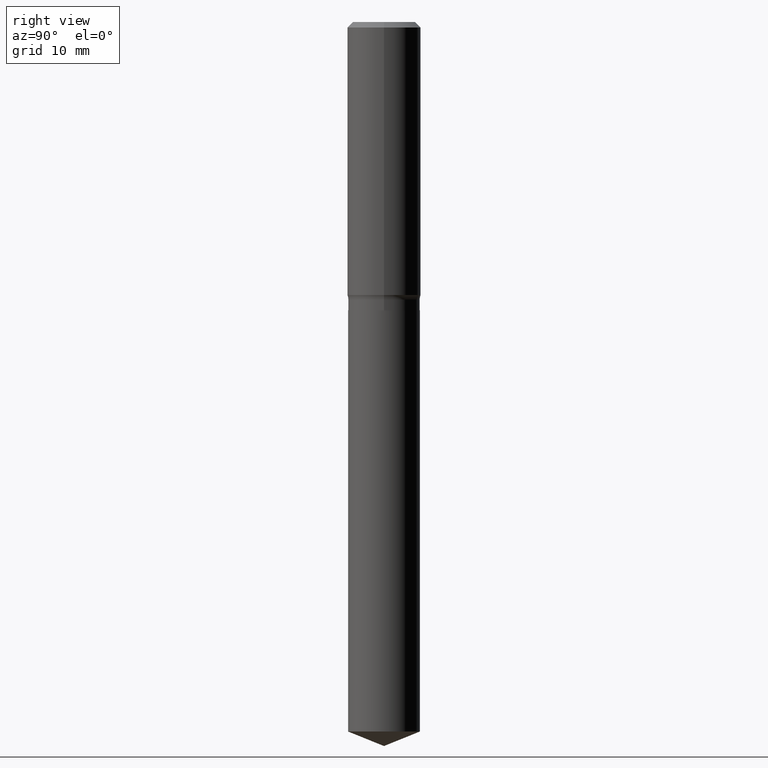
[diagram: clean part render]
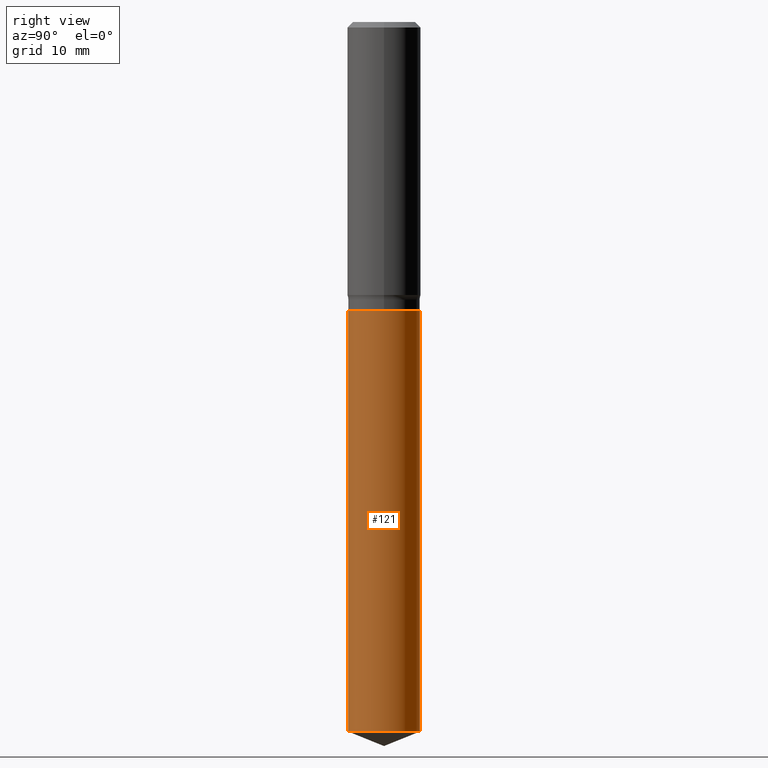
[diagram: same view with one face highlighted and labeled with its STEP entity id]
A machine part, right view. The second image highlights one B-rep face of the part: STEP entity #121.
In plain terms, the highlighted cylindrical surface (edge-blend (fillet) strip) has radius 5.8496 mm, axis along (-0, 0, 1).
Its self-contained STEP definition (entity closure, byte-faithful):
#24 = CARTESIAN_POINT ( 'NONE',  ( 1.636379920455622583E-15, 0.2302999999999935377, -1.850700000000000900 ) ) ;
#30 = CYLINDRICAL_SURFACE ( 'NONE', #73, 0.2303000000000000047 ) ;
#35 = CIRCLE ( 'NONE', #459, 0.2303000000000000047 ) ;
#61 = VECTOR ( 'NONE', #102, 39.37007874015748143 ) ;
#70 = FACE_OUTER_BOUND ( 'NONE', #88, .T. ) ;
#71 = CARTESIAN_POINT ( 'NONE',  ( 4.525829119606832626E-29, -6.461684513797009689E-15, -1.850700000000000012 ) ) ;
#73 = AXIS2_PLACEMENT_3D ( 'NONE', #71, #374, #336 ) ;
#76 = CARTESIAN_POINT ( 'NONE',  ( 1.113408915880530409E-28, -1.589657078221701403E-14, -4.552952760190164483 ) ) ;
#88 = EDGE_LOOP ( 'NONE', ( #419, #182, #359, #333 ) ) ;
#97 = EDGE_CURVE ( 'NONE', #428, #159, #488, .T. ) ;
#102 = DIRECTION ( 'NONE',  ( -2.445463332132347072E-29, 3.491489177998303329E-15, 1.000000000000000000 ) ) ;
#111 = CARTESIAN_POINT ( 'NONE',  ( 1.636379920455555924E-15, 0.2302999999999935377, -1.850700000000000900 ) ) ;
#121 = ADVANCED_FACE ( 'NONE', ( #70 ), #30, .T. ) ;
#147 = DIRECTION ( 'NONE',  ( -2.445463332132347352E-29, 3.491489177998303329E-15, 1.000000000000000000 ) ) ;
#159 = VERTEX_POINT ( 'NONE', #24 ) ;
#171 = AXIS2_PLACEMENT_3D ( 'NONE', #355, #398, #354 ) ;
#182 = ORIENTED_EDGE ( 'NONE', *, *, #97, .T. ) ;
#188 = LINE ( 'NONE', #301, #61 ) ;
#225 = DIRECTION ( 'NONE',  ( -2.445463332132347072E-29, 3.491489177998303329E-15, 1.000000000000000000 ) ) ;
#229 = CARTESIAN_POINT ( 'NONE',  ( -1.608176304671036037E-15, -0.2303000000000159919, -4.552952760190163595 ) ) ;
#237 = VERTEX_POINT ( 'NONE', #438 ) ;
#290 = VECTOR ( 'NONE', #225, 39.37007874015748143 ) ;
#297 = EDGE_CURVE ( 'NONE', #237, #159, #473, .T. ) ;
#301 = CARTESIAN_POINT ( 'NONE',  ( -1.608176304671101709E-15, -0.2303000000000064440, -1.850699999999999124 ) ) ;
#333 = ORIENTED_EDGE ( 'NONE', *, *, #417, .F. ) ;
#336 = DIRECTION ( 'NONE',  ( -6.982962677686265922E-15, -1.000000000000000000, 3.558638289619100968E-15 ) ) ;
#354 = DIRECTION ( 'NONE',  ( -6.982962677686265922E-15, -1.000000000000000000, 3.558638289619100968E-15 ) ) ;
#355 = CARTESIAN_POINT ( 'NONE',  ( 4.525829119606832626E-29, -6.461684513797009689E-15, -1.850700000000000012 ) ) ;
#359 = ORIENTED_EDGE ( 'NONE', *, *, #297, .F. ) ;
#365 = CARTESIAN_POINT ( 'NONE',  ( 1.636379920455622188E-15, 0.2302999999999841285, -4.552952760190164483 ) ) ;
#374 = DIRECTION ( 'NONE',  ( -2.445463332132347352E-29, 3.491489177998303329E-15, 1.000000000000000000 ) ) ;
#378 = DIRECTION ( 'NONE',  ( -6.982962677686265922E-15, -1.000000000000000000, 2.372425526412734110E-15 ) ) ;
#398 = DIRECTION ( 'NONE',  ( -2.445463332132347352E-29, 3.491489177998303329E-15, 1.000000000000000000 ) ) ;
#417 = EDGE_CURVE ( 'NONE', #425, #237, #188, .T. ) ;
#419 = ORIENTED_EDGE ( 'NONE', *, *, #463, .T. ) ;
#425 = VERTEX_POINT ( 'NONE', #229 ) ;
#428 = VERTEX_POINT ( 'NONE', #365 ) ;
#438 = CARTESIAN_POINT ( 'NONE',  ( -1.608176304671101709E-15, -0.2303000000000064440, -1.850699999999999124 ) ) ;
#459 = AXIS2_PLACEMENT_3D ( 'NONE', #76, #147, #378 ) ;
#463 = EDGE_CURVE ( 'NONE', #425, #428, #35, .T. ) ;
#473 = CIRCLE ( 'NONE', #171, 0.2303000000000000047 ) ;
#488 = LINE ( 'NONE', #111, #290 ) ;